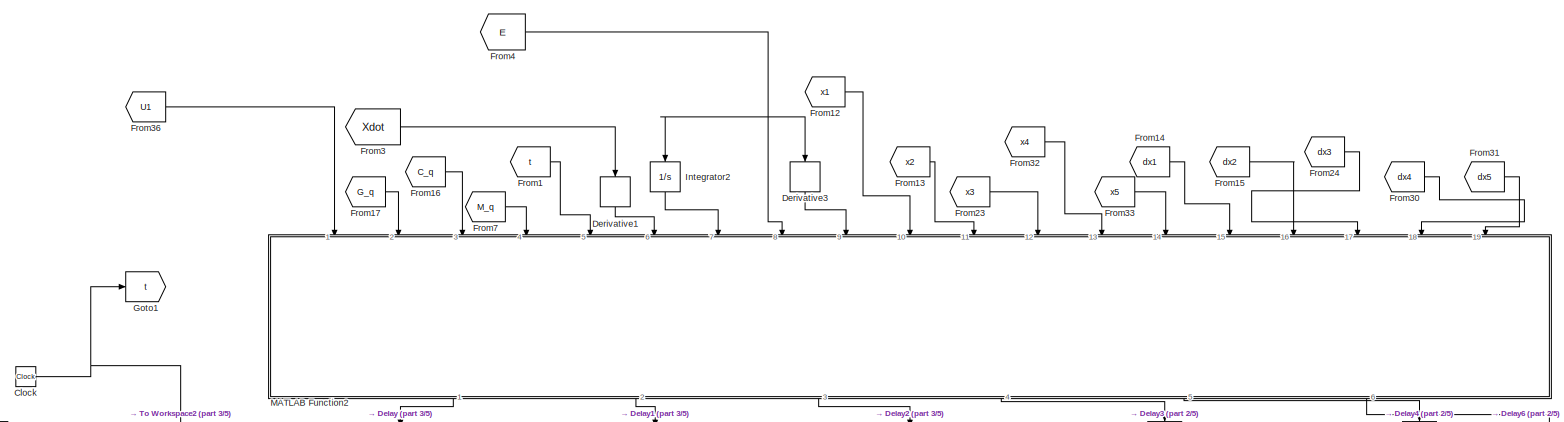
[diagram: root canvas - part 1/5, top center region]
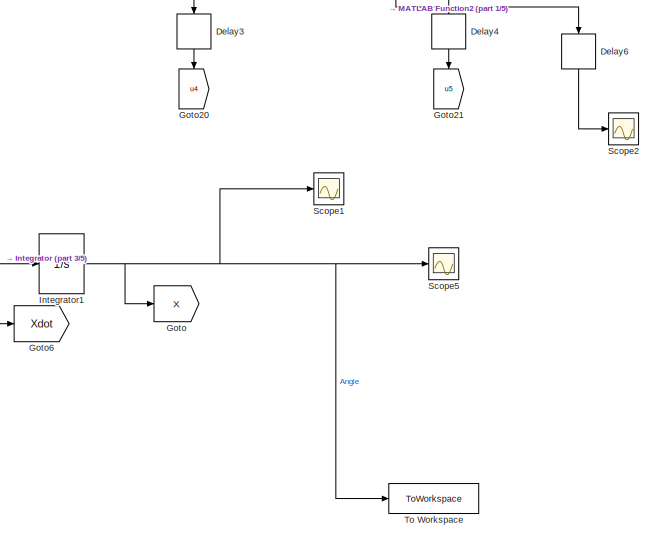
[diagram: root canvas - part 2/5, top center region]
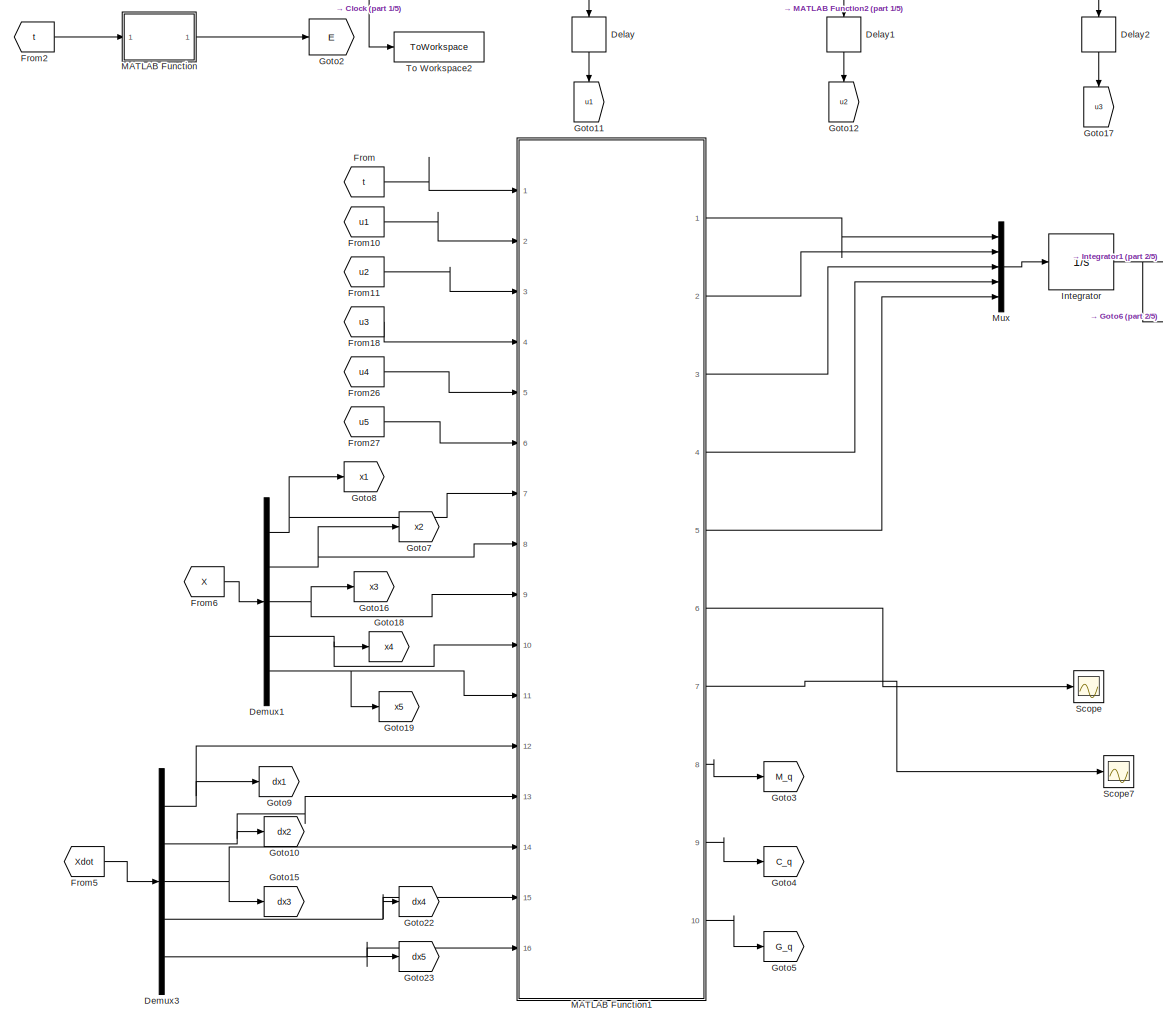
[diagram: root canvas - part 3/5, middle left region]
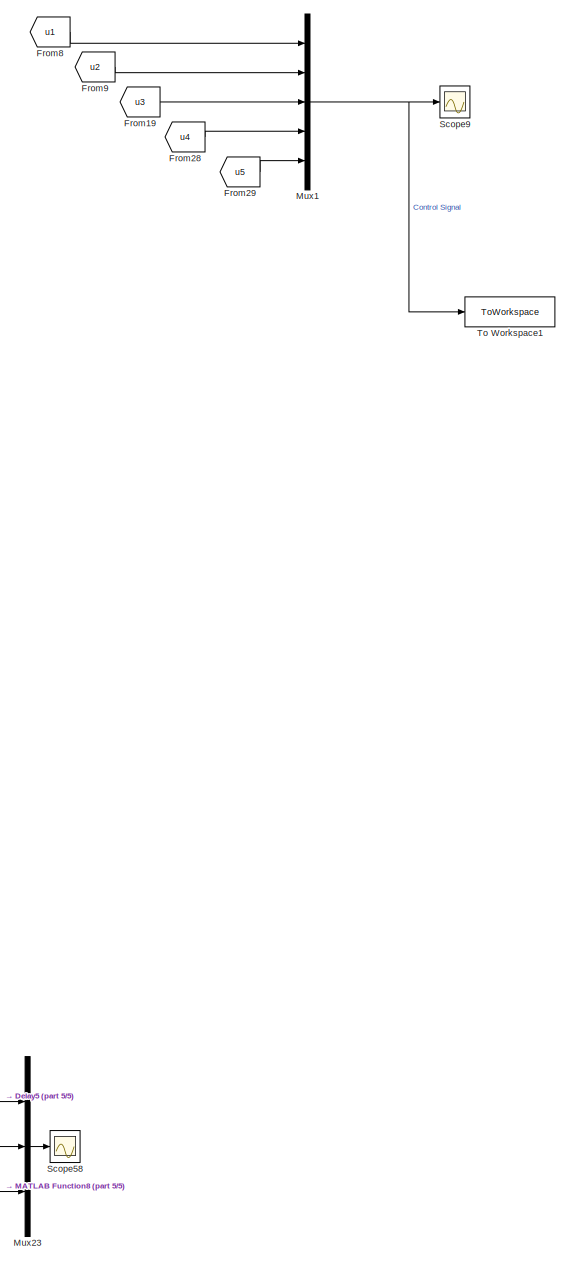
[diagram: root canvas - part 4/5, middle right region]
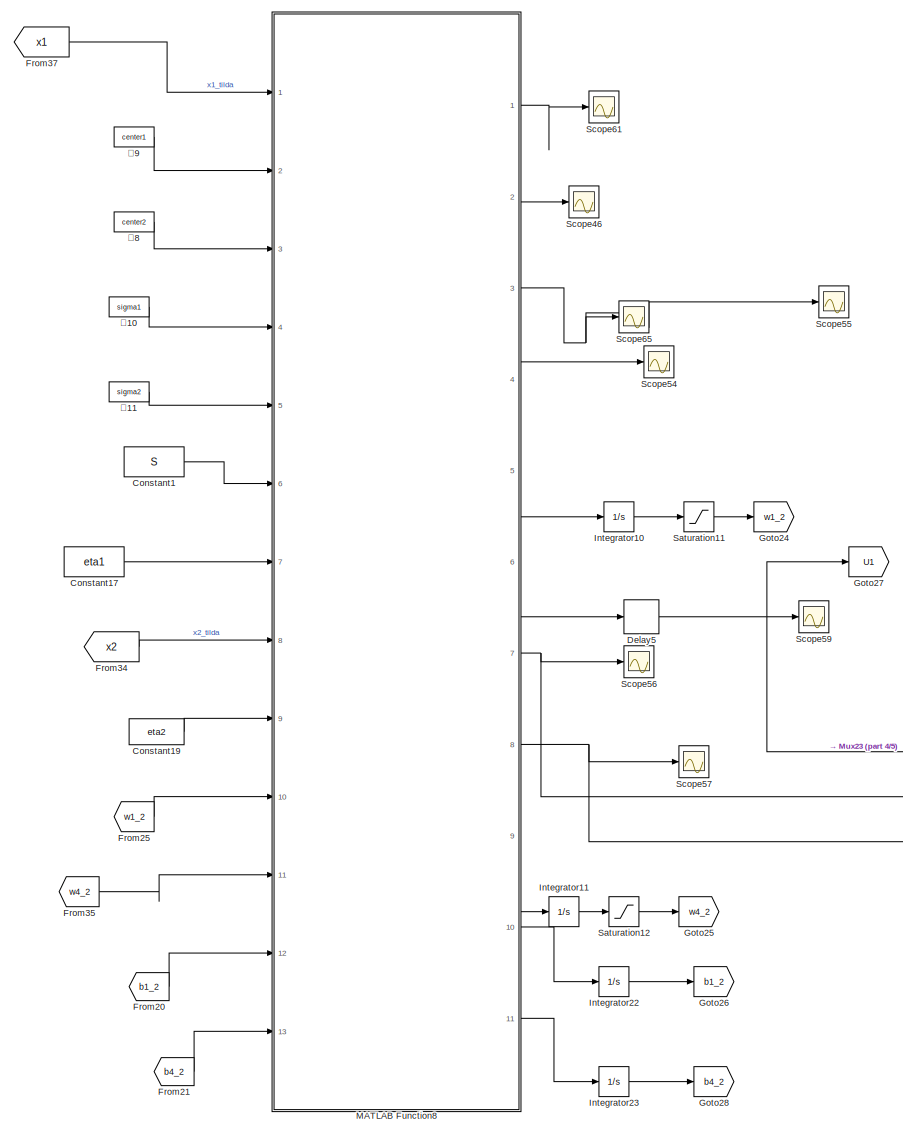
[diagram: root canvas - part 5/5, bottom center region]
MODEL slx_e2f898ebbdfa
KIND model
CONFIG AbsTol = auto
CONFIG EnableMultiTasking = on
CONFIG FixedStep = 0.0002
CONFIG InitFcn = clc\nclear\nx=[    1.0000\n   -1.0000\n   -1.0000\n   -1.0000\n    1.0000\n    1.0000\n    1.0000\n   -1.0000\n   -1.0000\n   -0.0461\n   -0.2275\n   -1.0000\n    1.0000\n    1.0000\n    1.0000\n    1.0000\n    0.1336\n   -0.0153\n   -0.9258\n    1.0000\n    1.0000\n    1.0000\n   -1.0000\n    1.0000\n   -1.0000\n    1.0000];\n\nx=x';\n\nalpha = 20+5*x(1);\nbeta = 4+2*x(2);\n\ngamma2 = 1.2 + 0.3* x(3);\ngamma1 = 1.2 + 0.3* x(4);\n\ne...<+715ch>
CONFIG MaxStep = auto
CONFIG MinStep = auto
CONFIG RelTol = 1e-3
CONFIG SampleTimeConstraint = Unconstrained
CONFIG SolverName = ode4
CONFIG StartTime = 0.0
CONFIG StopFcn = save('ATSMC.mat')
CONFIG StopTime = 10
BLOCK [Clock] Clock
BLOCK [Constant] Constant1
  Value = S
BLOCK [Constant] Constant17
  Value = eta1
BLOCK [Constant] Constant19
  Value = eta2
BLOCK [Delay] Delay
  DelayLength = 1
  InitialCondition = 0
  InputPortMap = u0
  NameLocation = left
  Ports = [1, 1]
BLOCK [Delay] Delay1
  DelayLength = 1
  InitialCondition = 0
  InputPortMap = u0
  NameLocation = left
  Ports = [1, 1]
BLOCK [Delay] Delay2
  DelayLength = 1
  InitialCondition = 0
  InputPortMap = u0
  NameLocation = left
  Ports = [1, 1]
BLOCK [Delay] Delay3
  DelayLength = 1
  InitialCondition = 0
  InputPortMap = u0
  NameLocation = left
  Ports = [1, 1]
BLOCK [Delay] Delay4
  DelayLength = 1
  InitialCondition = 0
  InputPortMap = u0
  NameLocation = left
  Ports = [1, 1]
BLOCK [Delay] Delay5
  DelayLength = 1
  InitialCondition = 0
  InputPortMap = u0
  Ports = [1, 1]
BLOCK [Delay] Delay6
  DelayLength = 1
  InitialCondition = 0
  InputPortMap = u0
  NameLocation = left
  Ports = [1, 1]
BLOCK [Demux] Demux1
  Outputs = 5
  Ports = [1, 5]
BLOCK [Demux] Demux3
  Outputs = 5
  Ports = [1, 5]
BLOCK [Derivative] Derivative1
  NameLocation = left
BLOCK [Derivative] Derivative3
  NameLocation = left
BLOCK [From] From
  GotoTag = t
BLOCK [From] From1
  GotoTag = t
BLOCK [From] From10
  GotoTag = u1
BLOCK [From] From11
  GotoTag = u2
BLOCK [From] From12
  GotoTag = x1
BLOCK [From] From13
  GotoTag = x2
BLOCK [From] From14
  GotoTag = dx1
BLOCK [From] From15
  GotoTag = dx2
BLOCK [From] From16
  GotoTag = C_q
BLOCK [From] From17
  GotoTag = G_q
BLOCK [From] From18
  GotoTag = u3
BLOCK [From] From19
  GotoTag = u3
BLOCK [From] From2
  GotoTag = t
BLOCK [From] From20
  GotoTag = b1_2
BLOCK [From] From21
  GotoTag = b4_2
BLOCK [From] From23
  GotoTag = x3
BLOCK [From] From24
  GotoTag = dx3
BLOCK [From] From25
  GotoTag = w1_2
BLOCK [From] From26
  GotoTag = u4
BLOCK [From] From27
  GotoTag = u5
BLOCK [From] From28
  GotoTag = u4
BLOCK [From] From29
  GotoTag = u5
BLOCK [From] From3
  GotoTag = Xdot
BLOCK [From] From30
  GotoTag = dx4
BLOCK [From] From31
  GotoTag = dx5
BLOCK [From] From32
  GotoTag = x4
BLOCK [From] From33
  GotoTag = x5
BLOCK [From] From34
  GotoTag = x2
BLOCK [From] From35
  GotoTag = w4_2
BLOCK [From] From36
  GotoTag = U1
BLOCK [From] From37
  GotoTag = x1
BLOCK [From] From4
  GotoTag = E
BLOCK [From] From5
  GotoTag = Xdot
BLOCK [From] From6
  GotoTag = X
BLOCK [From] From7
  GotoTag = M_q
BLOCK [From] From8
  GotoTag = u1
BLOCK [From] From9
  GotoTag = u2
BLOCK [Goto] Goto
  GotoTag = X
BLOCK [Goto] Goto1
  GotoTag = t
BLOCK [Goto] Goto10
  GotoTag = dx2
BLOCK [Goto] Goto11
  GotoTag = u1
  NameLocation = left
BLOCK [Goto] Goto12
  GotoTag = u2
  NameLocation = left
BLOCK [Goto] Goto15
  GotoTag = dx3
BLOCK [Goto] Goto16
  GotoTag = x3
BLOCK [Goto] Goto17
  GotoTag = u3
  NameLocation = left
BLOCK [Goto] Goto18
  GotoTag = x4
BLOCK [Goto] Goto19
  GotoTag = x5
BLOCK [Goto] Goto2
  GotoTag = E
BLOCK [Goto] Goto20
  GotoTag = u4
  NameLocation = left
BLOCK [Goto] Goto21
  GotoTag = u5
  NameLocation = left
BLOCK [Goto] Goto22
  GotoTag = dx4
BLOCK [Goto] Goto23
  GotoTag = dx5
BLOCK [Goto] Goto24
  GotoTag = w1_2
BLOCK [Goto] Goto25
  GotoTag = w4_2
BLOCK [Goto] Goto26
  GotoTag = b1_2
BLOCK [Goto] Goto27
  GotoTag = U1
BLOCK [Goto] Goto28
  GotoTag = b4_2
BLOCK [Goto] Goto3
  GotoTag = M_q
BLOCK [Goto] Goto4
  GotoTag = C_q
BLOCK [Goto] Goto5
  GotoTag = G_q
BLOCK [Goto] Goto6
  GotoTag = Xdot
BLOCK [Goto] Goto7
  GotoTag = x2
BLOCK [Goto] Goto8
  GotoTag = x1
BLOCK [Goto] Goto9
  GotoTag = dx1
BLOCK [Integrator] Integrator
  InitialCondition = [0.4;-0.8;1;0.3;0.1]*1
  Ports = [1, 1]
BLOCK [Integrator] Integrator1
  InitialCondition = [-0.4;0.8;0.4;-1.7;1.1]*1
  Ports = [1, 1]
BLOCK [Integrator] Integrator10
  InitialCondition = w1
  Ports = [1, 1]
BLOCK [Integrator] Integrator11
  InitialCondition = w4
  Ports = [1, 1]
BLOCK [Integrator] Integrator2
  NameLocation = left
  Ports = [1, 1]
BLOCK [Integrator] Integrator22
  InitialCondition = b1
  Ports = [1, 1]
BLOCK [Integrator] Integrator23
  InitialCondition = b4
  Ports = [1, 1]
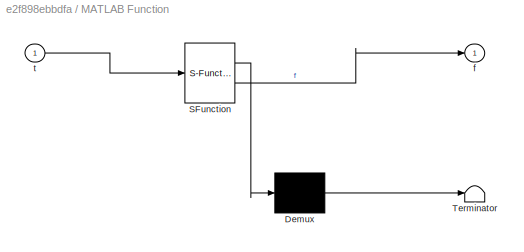
BLOCK [SubSystem] MATLAB Function
  ErrorFcn = Stateflow.Translate.translate
  PermitHierarchicalResolution = ExplicitOnly
  Ports = [1, 1]
  RequestExecContextInheritance = off
  SFBlockType = MATLAB Function
  TreatAsAtomicUnit = on
BLOCK [Demux] MATLAB Function/ Demux 
  Outputs = 1
  Ports = [1, 1]
BLOCK [S-Function] MATLAB Function/ SFunction 
  EnableBusSupport = on
  FunctionName = sf_sfun
  PortCounts = [1 2]
  Ports = [1, 2]
  SFcnIsStateOwnerBlock = off
  SFunctionDeploymentMode = off
  Tag = Stateflow S-Function 2
BLOCK [Terminator] MATLAB Function/ Terminator 
BLOCK [Outport] MATLAB Function/f
BLOCK [Inport] MATLAB Function/t
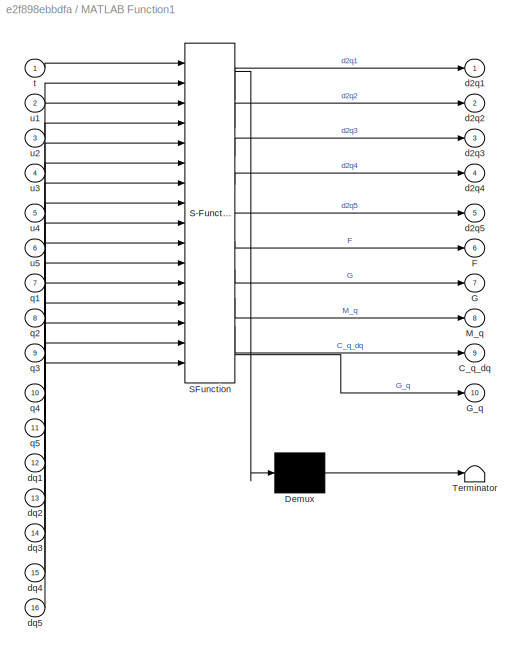
BLOCK [SubSystem] MATLAB Function1
  ErrorFcn = Stateflow.Translate.translate
  PermitHierarchicalResolution = ExplicitOnly
  Ports = [16, 10]
  RequestExecContextInheritance = off
  SFBlockType = MATLAB Function
  TreatAsAtomicUnit = on
BLOCK [Demux] MATLAB Function1/ Demux 
  Outputs = 1
  Ports = [1, 1]
BLOCK [S-Function] MATLAB Function1/ SFunction 
  EnableBusSupport = on
  FunctionName = sf_sfun
  PortCounts = [16 11]
  Ports = [16, 11]
  SFcnIsStateOwnerBlock = off
  SFunctionDeploymentMode = off
  Tag = Stateflow S-Function 1
BLOCK [Terminator] MATLAB Function1/ Terminator 
BLOCK [Outport] MATLAB Function1/C_q_dq
  Port = 9
BLOCK [Outport] MATLAB Function1/F
  Port = 6
BLOCK [Outport] MATLAB Function1/G
  Port = 7
BLOCK [Outport] MATLAB Function1/G_q
  Port = 10
BLOCK [Outport] MATLAB Function1/M_q
  Port = 8
BLOCK [Outport] MATLAB Function1/d2q1
  VectorParamsAs1DForOutWhenUnconnected = off
BLOCK [Outport] MATLAB Function1/d2q2
  Port = 2
  VectorParamsAs1DForOutWhenUnconnected = off
BLOCK [Outport] MATLAB Function1/d2q3
  Port = 3
BLOCK [Outport] MATLAB Function1/d2q4
  Port = 4
BLOCK [Outport] MATLAB Function1/d2q5
  Port = 5
BLOCK [Inport] MATLAB Function1/dq1
  Port = 12
BLOCK [Inport] MATLAB Function1/dq2
  Port = 13
BLOCK [Inport] MATLAB Function1/dq3
  Port = 14
BLOCK [Inport] MATLAB Function1/dq4
  Port = 15
BLOCK [Inport] MATLAB Function1/dq5
  Port = 16
BLOCK [Inport] MATLAB Function1/q1
  Port = 7
BLOCK [Inport] MATLAB Function1/q2
  Port = 8
BLOCK [Inport] MATLAB Function1/q3
  Port = 9
BLOCK [Inport] MATLAB Function1/q4
  Port = 10
BLOCK [Inport] MATLAB Function1/q5
  Port = 11
BLOCK [Inport] MATLAB Function1/t
BLOCK [Inport] MATLAB Function1/u1
  Port = 2
BLOCK [Inport] MATLAB Function1/u2
  Port = 3
BLOCK [Inport] MATLAB Function1/u3
  Port = 4
BLOCK [Inport] MATLAB Function1/u4
  Port = 5
BLOCK [Inport] MATLAB Function1/u5
  Port = 6
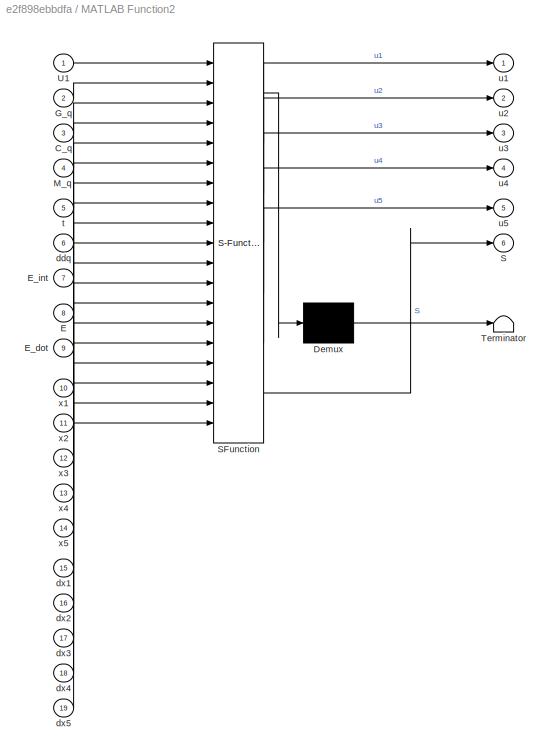
BLOCK [SubSystem] MATLAB Function2
  ErrorFcn = Stateflow.Translate.translate
  NameLocation = left
  PermitHierarchicalResolution = ExplicitOnly
  Ports = [19, 6]
  RequestExecContextInheritance = off
  SFBlockType = MATLAB Function
  TreatAsAtomicUnit = on
BLOCK [Demux] MATLAB Function2/ Demux 
  Outputs = 1
  Ports = [1, 1]
BLOCK [S-Function] MATLAB Function2/ SFunction 
  EnableBusSupport = on
  FunctionName = sf_sfun
  PortCounts = [19 7]
  Ports = [19, 7]
  SFcnIsStateOwnerBlock = off
  SFunctionDeploymentMode = off
  Tag = Stateflow S-Function 3
BLOCK [Terminator] MATLAB Function2/ Terminator 
BLOCK [Inport] MATLAB Function2/C_q
  Port = 3
BLOCK [Inport] MATLAB Function2/E
  Port = 8
BLOCK [Inport] MATLAB Function2/E_dot
  Port = 9
BLOCK [Inport] MATLAB Function2/E_int
  Port = 7
BLOCK [Inport] MATLAB Function2/G_q
  Port = 2
BLOCK [Inport] MATLAB Function2/M_q
  Port = 4
BLOCK [Outport] MATLAB Function2/S
  Port = 6
BLOCK [Inport] MATLAB Function2/U1
BLOCK [Inport] MATLAB Function2/ddq
  Port = 6
BLOCK [Inport] MATLAB Function2/dx1
  Port = 15
BLOCK [Inport] MATLAB Function2/dx2
  Port = 16
BLOCK [Inport] MATLAB Function2/dx3
  Port = 17
BLOCK [Inport] MATLAB Function2/dx4
  Port = 18
BLOCK [Inport] MATLAB Function2/dx5
  Port = 19
BLOCK [Inport] MATLAB Function2/t
  Port = 5
BLOCK [Outport] MATLAB Function2/u1
  VectorParamsAs1DForOutWhenUnconnected = off
BLOCK [Outport] MATLAB Function2/u2
  Port = 2
  VectorParamsAs1DForOutWhenUnconnected = off
BLOCK [Outport] MATLAB Function2/u3
  Port = 3
BLOCK [Outport] MATLAB Function2/u4
  Port = 4
BLOCK [Outport] MATLAB Function2/u5
  Port = 5
BLOCK [Inport] MATLAB Function2/x1
  Port = 10
BLOCK [Inport] MATLAB Function2/x2
  Port = 11
BLOCK [Inport] MATLAB Function2/x3
  Port = 12
BLOCK [Inport] MATLAB Function2/x4
  Port = 13
BLOCK [Inport] MATLAB Function2/x5
  Port = 14
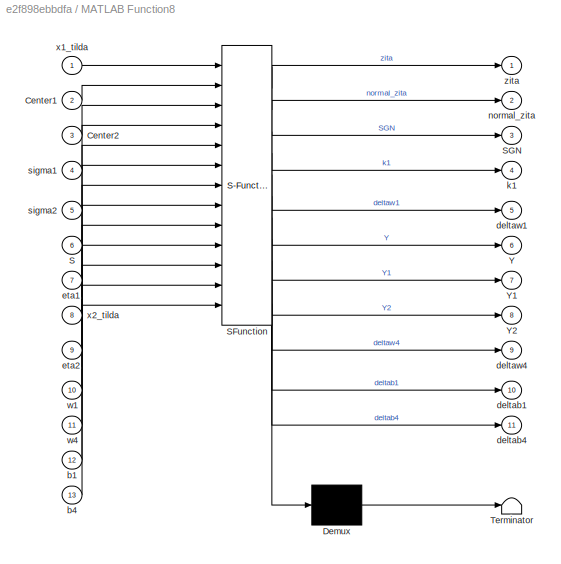
BLOCK [SubSystem] MATLAB Function8
  ErrorFcn = Stateflow.Translate.translate
  PermitHierarchicalResolution = ExplicitOnly
  Ports = [13, 11]
  RequestExecContextInheritance = off
  SFBlockType = MATLAB Function
  TreatAsAtomicUnit = on
BLOCK [Demux] MATLAB Function8/ Demux 
  Outputs = 1
  Ports = [1, 1]
BLOCK [S-Function] MATLAB Function8/ SFunction 
  EnableBusSupport = on
  FunctionName = sf_sfun
  PortCounts = [13 12]
  Ports = [13, 12]
  SFcnIsStateOwnerBlock = off
  SFunctionDeploymentMode = off
  Tag = Stateflow S-Function 8
BLOCK [Terminator] MATLAB Function8/ Terminator 
BLOCK [Inport] MATLAB Function8/Center1
  Port = 2
BLOCK [Inport] MATLAB Function8/Center2
  Port = 3
BLOCK [Inport] MATLAB Function8/S
  Port = 6
BLOCK [Outport] MATLAB Function8/SGN
  Port = 3
BLOCK [Outport] MATLAB Function8/Y
  Port = 6
BLOCK [Outport] MATLAB Function8/Y1
  Port = 7
BLOCK [Outport] MATLAB Function8/Y2
  Port = 8
BLOCK [Inport] MATLAB Function8/b1
  Port = 12
BLOCK [Inport] MATLAB Function8/b4
  Port = 13
BLOCK [Outport] MATLAB Function8/deltab1
  Port = 10
BLOCK [Outport] MATLAB Function8/deltab4
  Port = 11
BLOCK [Outport] MATLAB Function8/deltaw1
  Port = 5
BLOCK [Outport] MATLAB Function8/deltaw4
  Port = 9
BLOCK [Inport] MATLAB Function8/eta1
  Port = 7
BLOCK [Inport] MATLAB Function8/eta2
  Port = 9
BLOCK [Outport] MATLAB Function8/k1
  Port = 4
BLOCK [Outport] MATLAB Function8/normal_zita
  Port = 2
BLOCK [Inport] MATLAB Function8/sigma1
  Port = 4
BLOCK [Inport] MATLAB Function8/sigma2
  Port = 5
BLOCK [Inport] MATLAB Function8/w1
  Port = 10
BLOCK [Inport] MATLAB Function8/w4
  Port = 11
BLOCK [Inport] MATLAB Function8/x1_tilda
BLOCK [Inport] MATLAB Function8/x2_tilda
  Port = 8
BLOCK [Outport] MATLAB Function8/zita
BLOCK [Mux] Mux
  DisplayOption = bar
  Inputs = 5
  Ports = [5, 1]
BLOCK [Mux] Mux1
  DisplayOption = bar
  Inputs = 5
  Ports = [5, 1]
BLOCK [Mux] Mux23
  DisplayOption = bar
  Inputs = 3
  Ports = [3, 1]
BLOCK [Saturate] Saturation11
  LowerLimit = -100
  UpperLimit = 100
BLOCK [Saturate] Saturation12
  LowerLimit = -100
  UpperLimit = 100
BLOCK [Scope] Scope
  Floating = off
  NumInputPorts = 1
  Ports = [1]
  ScopeSpecificationString = Simulink.scopes.TimeScopeBlockCfg('CurrentConfiguration', extmgr.ConfigurationSet(extmgr.Configuration('Core','General UI',true),extmgr.Configuration('Core','Source UI',true),extmgr.Configuration('Sources','WiredSimulink',true,'DataLoggingVariableName','ScopeData1'),extmgr.Configuration('Visuals','Time Domain',true,'SerializedDisplays',{struct('MinYLimReal','-685.10731','MaxYLimReal','237.70015','...<+1485ch>
BLOCK [Scope] Scope1
  Floating = off
  NumInputPorts = 1
  Ports = [1]
  ScopeSpecificationString = Simulink.scopes.TimeScopeBlockCfg('CurrentConfiguration', extmgr.ConfigurationSet(extmgr.Configuration('Core','General UI',true),extmgr.Configuration('Core','Source UI',true),extmgr.Configuration('Sources','WiredSimulink',true,'DataLoggingVariableName','ScopeData4'),extmgr.Configuration('Visuals','Time Domain',true,'SerializedDisplays',{struct('MinYLimReal','-0.17497','MaxYLimReal','0.17496','YLab...<+1502ch>
BLOCK [Scope] Scope2
  Floating = off
  NumInputPorts = 1
  Ports = [1]
  ScopeSpecificationString = Simulink.scopes.TimeScopeBlockCfg('CurrentConfiguration', extmgr.ConfigurationSet(extmgr.Configuration('Core','General UI',true),extmgr.Configuration('Core','Source UI',true),extmgr.Configuration('Sources','WiredSimulink',true,'DataLoggingVariableName','ScopeData10'),extmgr.Configuration('Visuals','Time Domain',true,'SerializedDisplays',{struct('MinYLimReal','-2.15687','MaxYLimReal','2.19337','YLa...<+1500ch>
BLOCK [Scope] Scope46
  Floating = off
  NumInputPorts = 1
  Ports = [1]
  ScopeSpecificationString = Simulink.scopes.TimeScopeBlockCfg('CurrentConfiguration', extmgr.ConfigurationSet(extmgr.Configuration('Core','General UI',true),extmgr.Configuration('Core','Source UI',true),extmgr.Configuration('Sources','WiredSimulink',true,'DataLoggingVariableName','ScopeData1'),extmgr.Configuration('Visuals','Time Domain',true,'SerializedDisplays',{struct('MinYLimReal','-0.12155','MaxYLimReal','1.09391','YLab...<+1928ch>
BLOCK [Scope] Scope5
  Floating = off
  NumInputPorts = 1
  Ports = [1]
  ScopeSpecificationString = Simulink.scopes.TimeScopeBlockCfg('CurrentConfiguration', extmgr.ConfigurationSet(extmgr.Configuration('Core','General UI',true),extmgr.Configuration('Core','Source UI',true),extmgr.Configuration('Sources','WiredSimulink',true,'DataLoggingVariableName','ScopeData1'),extmgr.Configuration('Visuals','Time Domain',true,'SerializedDisplays',{struct('MinYLimReal','-2.15687','MaxYLimReal','2.19337','YLab...<+1546ch>
BLOCK [Scope] Scope54
  Floating = off
  NumInputPorts = 1
  Ports = [1]
  ScopeSpecificationString = Simulink.scopes.TimeScopeBlockCfg('CurrentConfiguration', extmgr.ConfigurationSet(extmgr.Configuration('Core','General UI',true),extmgr.Configuration('Core','Source UI',true),extmgr.Configuration('Sources','WiredSimulink',true,'DataLoggingVariableName','ScopeData2'),extmgr.Configuration('Visuals','Time Domain',true,'SerializedDisplays',{struct('MinYLimReal','-4.59944','MaxYLimReal','43.08324','YLa...<+1483ch>
BLOCK [Scope] Scope55
  Floating = off
  NumInputPorts = 1
  Ports = [1]
  ScopeSpecificationString = Simulink.scopes.TimeScopeBlockCfg('CurrentConfiguration', extmgr.ConfigurationSet(extmgr.Configuration('Core','General UI',true),extmgr.Configuration('Core','Source UI',true),extmgr.Configuration('Sources','WiredSimulink',true,'DataLoggingVariableName','ScopeData3'),extmgr.Configuration('Visuals','Time Domain',true,'SerializedDisplays',{struct('MinYLimReal','-579.7368','MaxYLimReal','88.25349','YL...<+1485ch>
BLOCK [Scope] Scope56
  Floating = off
  NumInputPorts = 1
  Ports = [1]
  ScopeSpecificationString = Simulink.scopes.TimeScopeBlockCfg('CurrentConfiguration', extmgr.ConfigurationSet(extmgr.Configuration('Core','General UI',true),extmgr.Configuration('Core','Source UI',true),extmgr.Configuration('Sources','WiredSimulink',true,'DataLoggingVariableName','ScopeData4'),extmgr.Configuration('Visuals','Time Domain',true,'SerializedDisplays',{struct('MinYLimReal','-238.22987','MaxYLimReal','172.04879','...<+1463ch>
BLOCK [Scope] Scope57
  Floating = off
  NumInputPorts = 1
  Ports = [1]
  ScopeSpecificationString = Simulink.scopes.TimeScopeBlockCfg('CurrentConfiguration', extmgr.ConfigurationSet(extmgr.Configuration('Core','General UI',true),extmgr.Configuration('Core','Source UI',true),extmgr.Configuration('Sources','WiredSimulink',true,'DataLoggingVariableName','ScopeData5'),extmgr.Configuration('Visuals','Time Domain',true,'SerializedDisplays',{struct('MinYLimReal','191.75814','MaxYLimReal','244.47724','Y...<+1467ch>
BLOCK [Scope] Scope58
  Floating = off
  NumInputPorts = 1
  Ports = [1]
  ScopeSpecificationString = Simulink.scopes.TimeScopeBlockCfg('CurrentConfiguration', extmgr.ConfigurationSet(extmgr.Configuration('Core','General UI',true),extmgr.Configuration('Core','Source UI',true),extmgr.Configuration('Sources','WiredSimulink',true,'DataLoggingVariableName','ScopeData6'),extmgr.Configuration('Visuals','Time Domain',true,'SerializedDisplays',{struct('MinYLimReal','-2378.08749','MaxYLimReal','509.06367',...<+1501ch>
BLOCK [Scope] Scope59
  Floating = off
  NumInputPorts = 1
  Ports = [1]
  ScopeSpecificationString = Simulink.scopes.TimeScopeBlockCfg('CurrentConfiguration', extmgr.ConfigurationSet(extmgr.Configuration('Core','General UI',true),extmgr.Configuration('Core','Source UI',true),extmgr.Configuration('Sources','WiredSimulink',true,'DataLoggingVariableName','ScopeData7'),extmgr.Configuration('Visuals','Time Domain',true,'SerializedDisplays',{struct('MinYLimReal','-29.90067','MaxYLimReal','269.106','YLa...<+1466ch>
BLOCK [Scope] Scope61
  Floating = off
  NumInputPorts = 1
  Ports = [1]
  ScopeSpecificationString = Simulink.scopes.TimeScopeBlockCfg('CurrentConfiguration', extmgr.ConfigurationSet(extmgr.Configuration('Core','General UI',true),extmgr.Configuration('Core','Source UI',true),extmgr.Configuration('Sources','WiredSimulink',true,'DataLoggingVariableName','ScopeData8'),extmgr.Configuration('Visuals','Time Domain',true,'SerializedDisplays',{struct('MinYLimReal','-0.125','MaxYLimReal','1.125','YLabelRe...<+2269ch>
BLOCK [Scope] Scope65
  Floating = off
  NumInputPorts = 1
  Ports = [1]
  ScopeSpecificationString = Simulink.scopes.TimeScopeBlockCfg('CurrentConfiguration', extmgr.ConfigurationSet(extmgr.Configuration('Core','General UI',true),extmgr.Configuration('Core','Source UI',true),extmgr.Configuration('Sources','WiredSimulink',true,'DataLoggingVariableName','ScopeData9'),extmgr.Configuration('Visuals','Time Domain',true,'SerializedDisplays',{struct('MinYLimReal','-10.20732','MaxYLimReal','40.28214','YL...<+1690ch>
BLOCK [Scope] Scope7
  Floating = off
  NumInputPorts = 1
  Ports = [1]
  ScopeSpecificationString = Simulink.scopes.TimeScopeBlockCfg('CurrentConfiguration', extmgr.ConfigurationSet(extmgr.Configuration('Core','General UI',true),extmgr.Configuration('Core','Source UI',true),extmgr.Configuration('Sources','WiredSimulink',true,'DataLoggingVariableName','ScopeData6'),extmgr.Configuration('Visuals','Time Domain',true,'SerializedDisplays',{struct('MinYLimReal','-119.60408','MaxYLimReal','373.20562','...<+1666ch>
BLOCK [Scope] Scope9
  Floating = off
  NumInputPorts = 1
  Ports = [1]
  ScopeSpecificationString = Simulink.scopes.TimeScopeBlockCfg('CurrentConfiguration', extmgr.ConfigurationSet(extmgr.Configuration('Core','General UI',true),extmgr.Configuration('Core','Source UI',true),extmgr.Configuration('Sources','WiredSimulink',true,'DataLoggingVariableName','ScopeData2'),extmgr.Configuration('Visuals','Time Domain',true,'SerializedDisplays',{struct('MinYLimReal','-34.67814','MaxYLimReal','58.99969','YL...<+1641ch>
BLOCK [ToWorkspace] To Workspace
  FixptAsFi = on
  MaxDataPoints = inf
  Ports = [1]
  SampleTime = -1
  VariableName = Angle
BLOCK [ToWorkspace] To Workspace1
  FixptAsFi = on
  MaxDataPoints = inf
  Ports = [1]
  SampleTime = -1
  VariableName = Control_Signal
BLOCK [ToWorkspace] To Workspace2
  FixptAsFi = on
  MaxDataPoints = inf
  Ports = [1]
  SampleTime = -1
  VariableName = time11
BLOCK [Constant] ⁩10
  Value = sigma1
BLOCK [Constant] ⁩11
  Value = sigma2
BLOCK [Constant] ⁩8
  Value = center2
BLOCK [Constant] ⁩9
  Value = center1
NET Clock:1 -> Goto1:1, To Workspace2:1
LINE Constant17:1 -> MATLAB Function8:7
LINE Constant19:1 -> MATLAB Function8:9
LINE Constant1:1 -> MATLAB Function8:6
LINE Delay1:1 -> Goto12:1
LINE Delay2:1 -> Goto17:1
LINE Delay3:1 -> Goto20:1
LINE Delay4:1 -> Goto21:1
NET Delay5:1 -> Goto27:1, Mux23:1, Scope59:1
LINE Delay6:1 -> Scope2:1
LINE Delay:1 -> Goto11:1
NET Demux1:1 -> Goto8:1, MATLAB Function1:7
NET Demux1:2 -> Goto7:1, MATLAB Function1:8
NET Demux1:3 -> Goto16:1, MATLAB Function1:9
NET Demux1:4 -> Goto18:1, MATLAB Function1:10
NET Demux1:5 -> Goto19:1, MATLAB Function1:11
NET Demux3:1 -> Goto9:1, MATLAB Function1:12
NET Demux3:2 -> Goto10:1, MATLAB Function1:13
NET Demux3:3 -> Goto15:1, MATLAB Function1:14
NET Demux3:4 -> Goto22:1, MATLAB Function1:15
NET Demux3:5 -> Goto23:1, MATLAB Function1:16
LINE Derivative1:1 -> MATLAB Function2:6
LINE Derivative3:1 -> MATLAB Function2:9
LINE From10:1 -> MATLAB Function1:2
LINE From11:1 -> MATLAB Function1:3
LINE From12:1 -> MATLAB Function2:10
LINE From13:1 -> MATLAB Function2:11
LINE From14:1 -> MATLAB Function2:15
LINE From15:1 -> MATLAB Function2:16
LINE From16:1 -> MATLAB Function2:3
LINE From17:1 -> MATLAB Function2:2
LINE From18:1 -> MATLAB Function1:4
LINE From19:1 -> Mux1:3
LINE From1:1 -> MATLAB Function2:5
LINE From20:1 -> MATLAB Function8:12
LINE From21:1 -> MATLAB Function8:13
LINE From23:1 -> MATLAB Function2:12
LINE From24:1 -> MATLAB Function2:17
LINE From25:1 -> MATLAB Function8:10
LINE From26:1 -> MATLAB Function1:5
LINE From27:1 -> MATLAB Function1:6
LINE From28:1 -> Mux1:4
LINE From29:1 -> Mux1:5
LINE From2:1 -> MATLAB Function:1
LINE From30:1 -> MATLAB Function2:18
LINE From31:1 -> MATLAB Function2:19
LINE From32:1 -> MATLAB Function2:13
LINE From33:1 -> MATLAB Function2:14
LINE From34:1 -> MATLAB Function8:8
LINE From35:1 -> MATLAB Function8:11
LINE From36:1 -> MATLAB Function2:1
LINE From37:1 -> MATLAB Function8:1
LINE From3:1 -> Derivative1:1
NET From4:1 -> Derivative3:1, Integrator2:1, MATLAB Function2:8
LINE From5:1 -> Demux3:1
LINE From6:1 -> Demux1:1
LINE From7:1 -> MATLAB Function2:4
LINE From8:1 -> Mux1:1
LINE From9:1 -> Mux1:2
LINE From:1 -> MATLAB Function1:1
LINE Integrator10:1 -> Saturation11:1
LINE Integrator11:1 -> Saturation12:1
NET Integrator1:1 -> Goto:1, Scope1:1, Scope5:1, To Workspace:1
LINE Integrator22:1 -> Goto26:1
LINE Integrator23:1 -> Goto28:1
LINE Integrator2:1 -> MATLAB Function2:7
NET Integrator:1 -> Goto6:1, Integrator1:1
LINE MATLAB Function1:1 -> Mux:1
LINE MATLAB Function1:10 -> Goto5:1
LINE MATLAB Function1:2 -> Mux:2
LINE MATLAB Function1:3 -> Mux:3
LINE MATLAB Function1:4 -> Mux:4
LINE MATLAB Function1:5 -> Mux:5
LINE MATLAB Function1:6 -> Scope:1
LINE MATLAB Function1:7 -> Scope7:1
LINE MATLAB Function1:8 -> Goto3:1
LINE MATLAB Function1:9 -> Goto4:1
LINE MATLAB Function2:1 -> Delay:1
LINE MATLAB Function2:2 -> Delay1:1
LINE MATLAB Function2:3 -> Delay2:1
LINE MATLAB Function2:4 -> Delay3:1
LINE MATLAB Function2:5 -> Delay4:1
LINE MATLAB Function2:6 -> Delay6:1
LINE MATLAB Function8:1 -> Scope61:1
LINE MATLAB Function8:10 -> Integrator22:1
LINE MATLAB Function8:11 -> Integrator23:1
LINE MATLAB Function8:2 -> Scope46:1
NET MATLAB Function8:3 -> Scope55:1, Scope65:1
LINE MATLAB Function8:4 -> Scope54:1
LINE MATLAB Function8:5 -> Integrator10:1
LINE MATLAB Function8:6 -> Delay5:1
NET MATLAB Function8:7 -> Mux23:2, Scope56:1
NET MATLAB Function8:8 -> Mux23:3, Scope57:1
LINE MATLAB Function8:9 -> Integrator11:1
LINE MATLAB Function:1 -> Goto2:1
NET Mux1:1 -> Scope9:1, To Workspace1:1
LINE Mux23:1 -> Scope58:1
LINE Mux:1 -> Integrator:1
LINE Saturation11:1 -> Goto24:1
LINE Saturation12:1 -> Goto25:1
LINE ⁩10:1 -> MATLAB Function8:4
LINE ⁩11:1 -> MATLAB Function8:5
LINE ⁩8:1 -> MATLAB Function8:3
LINE ⁩9:1 -> MATLAB Function8:2
note: NET lines group one-source signal fan-out (src -> all destinations, sorted); 1:1 wires keep LINE
CHART MATLAB Function2 states=1 transitions=1
  STATE_LABEL 'eML_blk_kernel()'
  STATE_LABEL "SCRIPT:\nfunction [u1,u2,u3,u4,u5,S]= SMC_controller(U1, G_q, C_q, M_q, t,ddq, E_int, E,E_dot,x1,x2,x3,x4,x5, dx1,dx2,dx3,dx4,dx5)\n\n%% initial parameters\n\nq1 = x1;\nq2 = x2;\nq3 = x3;\nq4 = x4;\nq5 = x5;\n\ndq1 = dx1;\ndq2 = dx2;\ndq3 = dx3;\ndq4 = dx4;\ndq5 = dx5;\n\ndq = [dq1,dq2,dq3,dq4,dq5]';\nq = [q1,q2,q3,q4,q5]';\n\n\n%% Controller \n\nK=20;\nlanda1 = 1;\nlanda2 = 1;\n\nS = -landa1*E;\nS_dot = -landa2*E_dot;\n\n%% u...<+106ch>"
CHART MATLAB Function8 states=1 transitions=1
  STATE_LABEL 'eML_blk_kernel()'
  STATE_LABEL "SCRIPT:\nfunction [zita,normal_zita,SGN,k1, deltaw1,Y,Y1,Y2,deltaw4, deltab1,deltab4]  = Fuzzy( x1_tilda,Center1,Center2,sigma1,sigma2,S,eta1,x2_tilda, eta2, w1,w4,b1,b4)\n\n\ncoder.extrinsic('gaussmf'); \nMu1_L=[1 0.5 0];\nMu2_L=[1 0.5 0];\n\nzita=ones(1,9);\n\n\n%%\n\n \nk = 1;\n\nfor ii=1:length(Center1)\n\n    if ii==1\n        if x1_tilda < Center1(ii)\n            Mu1_L(ii) = 1;\n        else\n            Mu1_L(i...<+1240ch>"
CHART MATLAB Function1 states=1 transitions=1
  STATE_LABEL 'eML_blk_kernel()'
  STATE_LABEL 'SCRIPT:\nfunction [d2q1,d2q2,d2q3,d2q4,d2q5,F,G, M_q,C_q_dq,G_q] = manipulator(t,u1,u2,u3,u4,u5,q1,q2,q3,q4,q5,dq1,dq2,dq3,dq4,dq5)\n\n%% initial param\n\nI1 = 1.14;\nI2 = 1.43;\nI3 = 1.38;\nI4 = 0.298;\nI5 = -0.0213;\nI6 = -0.0142;\nI7 = -0.0001;\nI8 = 0.372;\nI9 = -0.011;\nI10 = 0.00125;\nI11 = -0.0124;\nI12 = 0.000058;\nI13 = -0.69;\nI14 = 0.134;\nI15 = 0.238;\nI16 = 0.00379;\nI17 = 0.000642;\nI18 = 4.71;\nI19 = 1.75...<+2465ch>'
CHART MATLAB Function states=1 transitions=1
  STATE_LABEL 'eML_blk_kernel()'
  STATE_LABEL 'SCRIPT:\nfunction f = fcn(t)\n\n\n\nf=[sin(t-2)\n    1.2*cos(t-5)\n    1.6*cos(t)\n    -1.5*cos(t-5)\n    0.7];\n\n'
CHART  states=0 transitions=0
CHART  states=0 transitions=0
CHART  states=0 transitions=0
CHART  states=0 transitions=0
